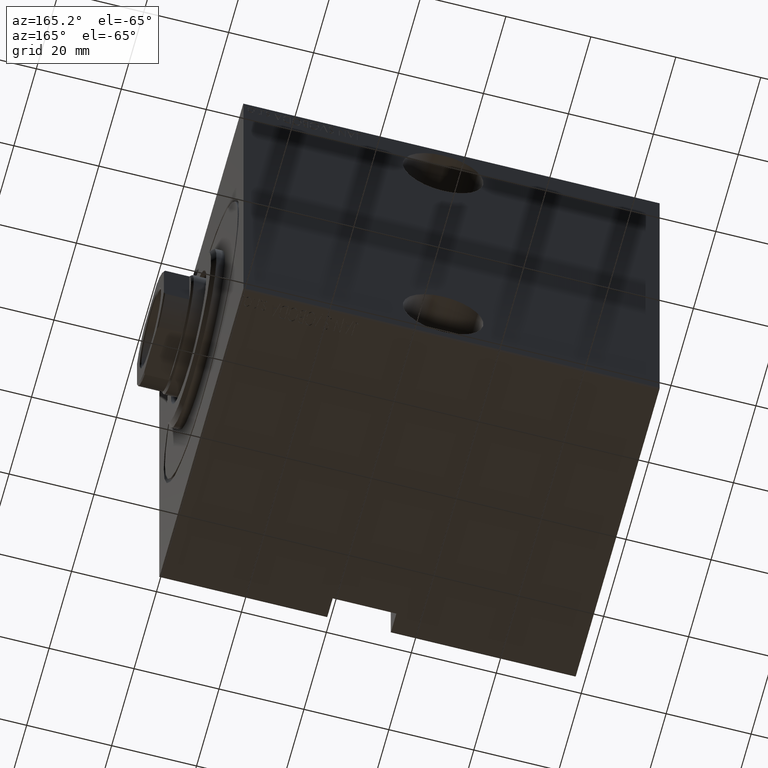
[diagram: clean part render]
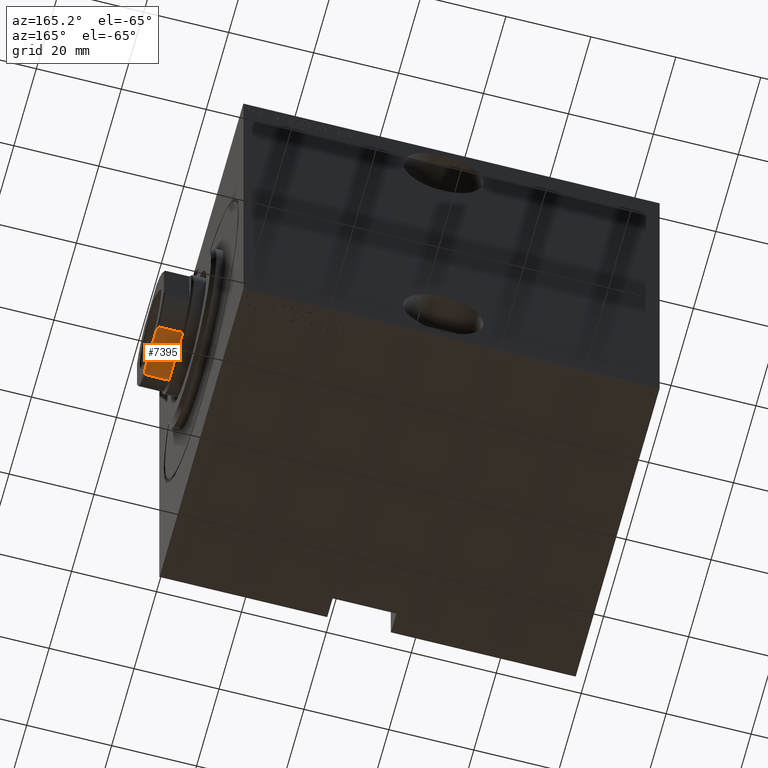
[diagram: same view with one face highlighted and labeled with its STEP entity id]
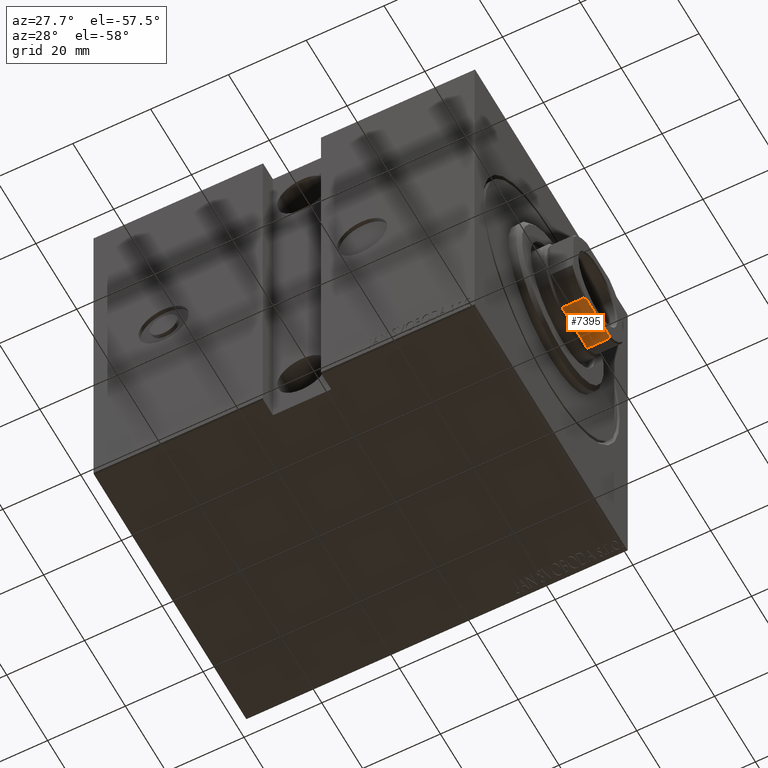
[diagram: same view with one face highlighted and labeled with its STEP entity id]
A machine part, auxiliary view. The second image highlights one B-rep face of the part: STEP entity #7395.
A second angle (auxiliary view) of the same face is appended — the face is thin or edge-on in the first view.
In plain terms, the highlighted planar face has unit normal (0, -0, 1).
Its self-contained STEP definition (entity closure, byte-faithful):
#1478 = VERTEX_POINT ( 'NONE', #15933 ) ;
#1549 = VECTOR ( 'NONE', #8828, 1000.000000000000000 ) ;
#3540 = VECTOR ( 'NONE', #39354, 1000.000000000000000 ) ;
#4452 = CARTESIAN_POINT ( 'NONE',  ( 11.99999999999999645, -6.184658438426501981, 95.69999999999998863 ) ) ;
#6498 = VECTOR ( 'NONE', #38266, 1000.000000000000000 ) ;
#6741 = ORIENTED_EDGE ( 'NONE', *, *, #22524, .T. ) ;
#7358 = CARTESIAN_POINT ( 'NONE',  ( 11.99999999999999645, 6.184658438426501093, -0.001000000000001000089 ) ) ;
#7395 = ADVANCED_FACE ( 'NONE', ( #37688 ), #27985, .F. ) ;
#7683 = CARTESIAN_POINT ( 'NONE',  ( 12.00000000000000000, -5.499090833947034795, 96.00000000000000000 ) ) ;
#7959 = DIRECTION ( 'NONE',  ( 2.168404344971008868E-16, -1.000000000000000000, 0.000000000000000000 ) ) ;
#8604 = ORIENTED_EDGE ( 'NONE', *, *, #28121, .F. ) ;
#8763 = AXIS2_PLACEMENT_3D ( 'NONE', #14435, #34456, #7959 ) ;
#8828 = DIRECTION ( 'NONE',  ( -0.000000000000000000, -0.000000000000000000, 1.000000000000000000 ) ) ;
#10124 = CARTESIAN_POINT ( 'NONE',  ( 11.99999999999999645, 5.499090833947039236, 96.00000000000000000 ) ) ;
#11807 = EDGE_LOOP ( 'NONE', ( #38695, #38856, #23846, #6741, #8604, #38522 ) ) ;
#13079 = EDGE_CURVE ( 'NONE', #1478, #15840, #37087, .T. ) ;
#13100 = CARTESIAN_POINT ( 'NONE',  ( 11.99999999999999645, 11.99999999999999645, 96.00000000000000000 ) ) ;
#13661 = CARTESIAN_POINT ( 'NONE',  ( 11.99999999999999645, 6.184658438426501093, 95.69999999999998863 ) ) ;
#14105 = CARTESIAN_POINT ( 'NONE',  ( 11.99999999999999645, 6.184658438426501093, 95.69999999999998863 ) ) ;
#14183 = VERTEX_POINT ( 'NONE', #10124 ) ;
#14421 = EDGE_CURVE ( 'NONE', #22651, #14183, #29470, .T. ) ;
#14435 = CARTESIAN_POINT ( 'NONE',  ( 11.99999999999999645, 11.99999999999999645, 96.00000000000000000 ) ) ;
#14795 = CARTESIAN_POINT ( 'NONE',  ( 12.00000000000000000, -5.499090833947034795, 96.00000000000000000 ) ) ;
#15045 = B_SPLINE_CURVE_WITH_KNOTS ( 'NONE', 3,
 ( #14105, #27236, #16914, #26811 ),
 .UNSPECIFIED., .F., .F.,
 ( 4, 4 ),
 ( 0.000000000000000000, 0.0007483334419306103850 ),
 .UNSPECIFIED. ) ;
#15840 = VERTEX_POINT ( 'NONE', #13661 ) ;
#15862 = VERTEX_POINT ( 'NONE', #33681 ) ;
#15933 = CARTESIAN_POINT ( 'NONE',  ( 11.99999999999999645, 6.184658438426501093, 89.99999999999998579 ) ) ;
#16914 = CARTESIAN_POINT ( 'NONE',  ( 11.99999999999999822, 5.729389212963461375, 95.90405820415740834 ) ) ;
#18551 = LINE ( 'NONE', #42405, #1549 ) ;
#21271 = CARTESIAN_POINT ( 'NONE',  ( 11.99999999999999645, 11.99999999999999645, 90.00000000000000000 ) ) ;
#22524 = EDGE_CURVE ( 'NONE', #22651, #32597, #26662, .T. ) ;
#22651 = VERTEX_POINT ( 'NONE', #14795 ) ;
#23846 = ORIENTED_EDGE ( 'NONE', *, *, #14421, .F. ) ;
#25118 = CARTESIAN_POINT ( 'NONE',  ( 11.99999999999999645, -6.184658438426501981, 95.69999999999998863 ) ) ;
#26662 = B_SPLINE_CURVE_WITH_KNOTS ( 'NONE', 3,
 ( #7683, #41049, #27293, #4452 ),
 .UNSPECIFIED., .F., .F.,
 ( 4, 4 ),
 ( 8.673617379884034509E-19, 0.0007483334419306152639 ),
 .UNSPECIFIED. ) ;
#26811 = CARTESIAN_POINT ( 'NONE',  ( 11.99999999999999645, 5.499090833947039236, 96.00000000000000000 ) ) ;
#27236 = CARTESIAN_POINT ( 'NONE',  ( 11.99999999999999645, 5.957846001622727705, 95.80390795934953019 ) ) ;
#27293 = CARTESIAN_POINT ( 'NONE',  ( 12.00000000000000000, -5.957846001622726817, 95.80390795934953019 ) ) ;
#27985 = PLANE ( 'NONE',  #8763 ) ;
#28121 = EDGE_CURVE ( 'NONE', #15862, #32597, #18551, .T. ) ;
#28313 = VECTOR ( 'NONE', #39876, 1000.000000000000000 ) ;
#28786 = EDGE_CURVE ( 'NONE', #15840, #14183, #15045, .T. ) ;
#29470 = LINE ( 'NONE', #13100, #3540 ) ;
#32015 = LINE ( 'NONE', #21271, #6498 ) ;
#32597 = VERTEX_POINT ( 'NONE', #25118 ) ;
#33495 = EDGE_CURVE ( 'NONE', #15862, #1478, #32015, .T. ) ;
#33681 = CARTESIAN_POINT ( 'NONE',  ( 11.99999999999999645, -6.184658438426501981, 89.99999999999998579 ) ) ;
#34456 = DIRECTION ( 'NONE',  ( -1.000000000000000000, -2.168404344971008868E-16, 0.000000000000000000 ) ) ;
#37087 = LINE ( 'NONE', #7358, #28313 ) ;
#37688 = FACE_OUTER_BOUND ( 'NONE', #11807, .T. ) ;
#38266 = DIRECTION ( 'NONE',  ( -2.168404344971008868E-16, 1.000000000000000000, -0.000000000000000000 ) ) ;
#38522 = ORIENTED_EDGE ( 'NONE', *, *, #33495, .T. ) ;
#38695 = ORIENTED_EDGE ( 'NONE', *, *, #13079, .T. ) ;
#38856 = ORIENTED_EDGE ( 'NONE', *, *, #28786, .T. ) ;
#39354 = DIRECTION ( 'NONE',  ( -2.168404344971008868E-16, 1.000000000000000000, -0.000000000000000000 ) ) ;
#39876 = DIRECTION ( 'NONE',  ( -0.000000000000000000, -0.000000000000000000, 1.000000000000000000 ) ) ;
#41049 = CARTESIAN_POINT ( 'NONE',  ( 11.99999999999999822, -5.729389212963460487, 95.90405820415740834 ) ) ;
#42405 = CARTESIAN_POINT ( 'NONE',  ( 11.99999999999999645, -6.184658438426501981, -0.001000000000001000089 ) ) ;